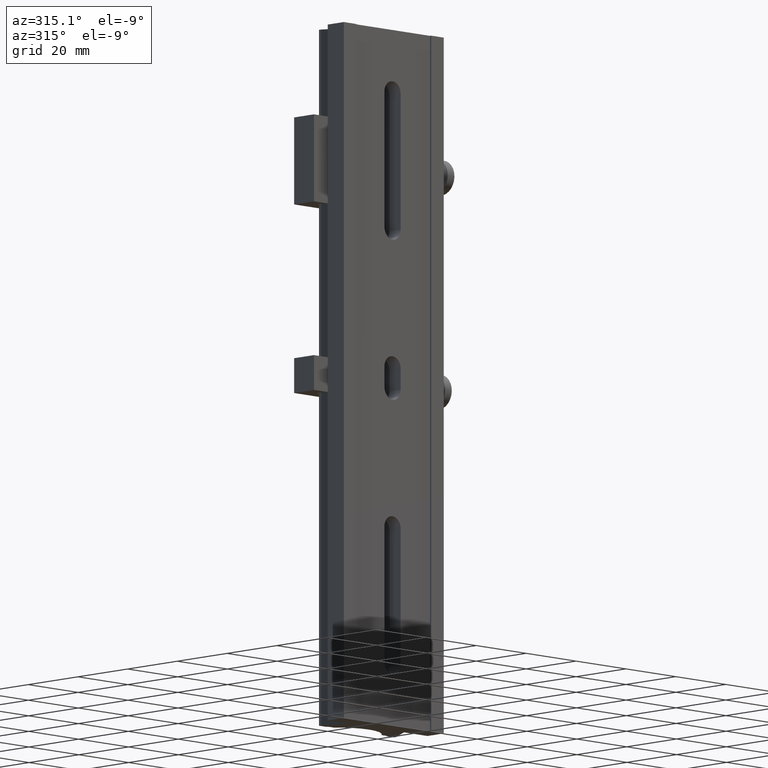
[diagram: clean part render]
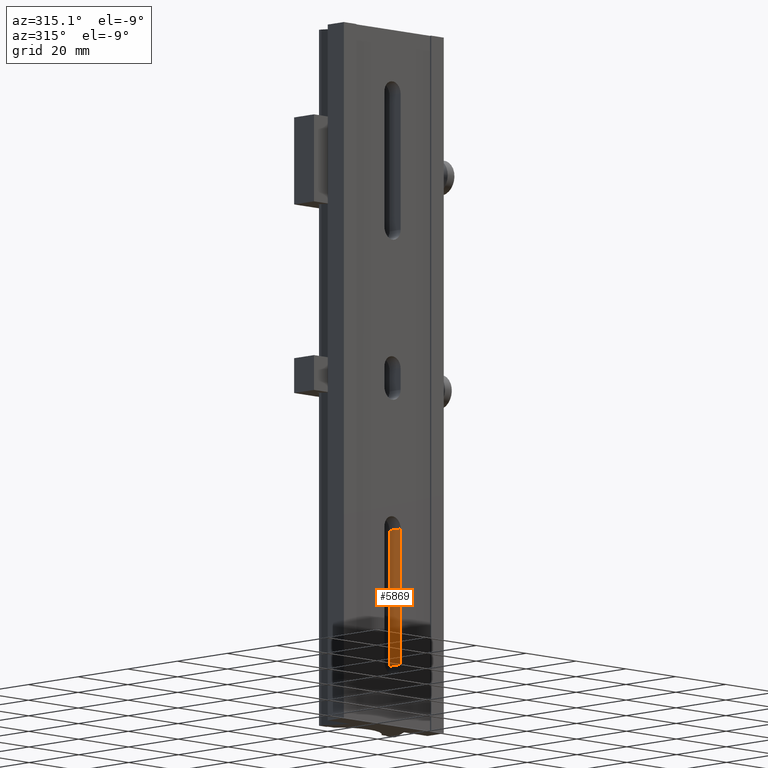
[diagram: same view with one face highlighted and labeled with its STEP entity id]
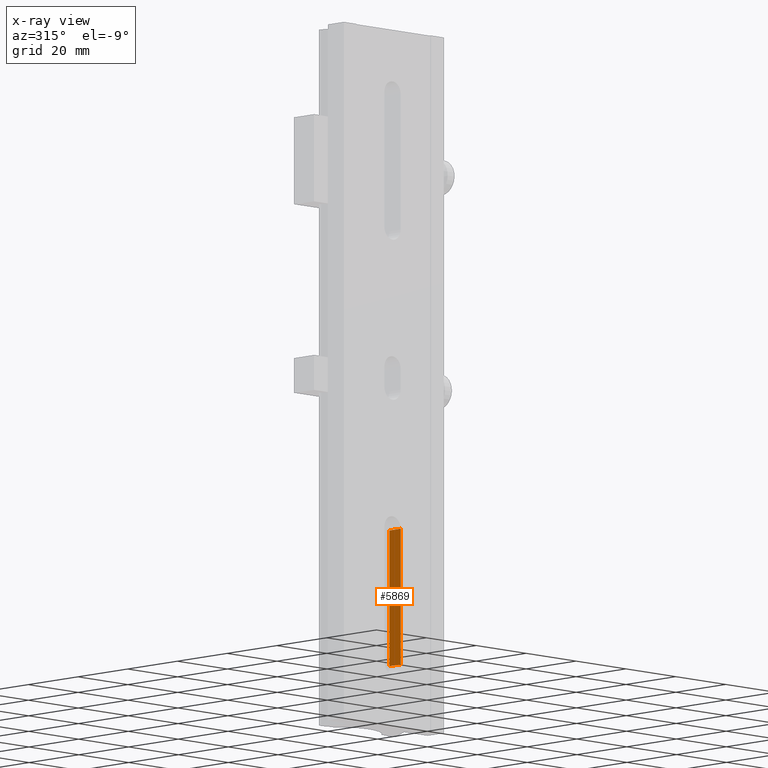
[diagram: x-ray of the same camera — body ghosted, the highlighted face saturated]
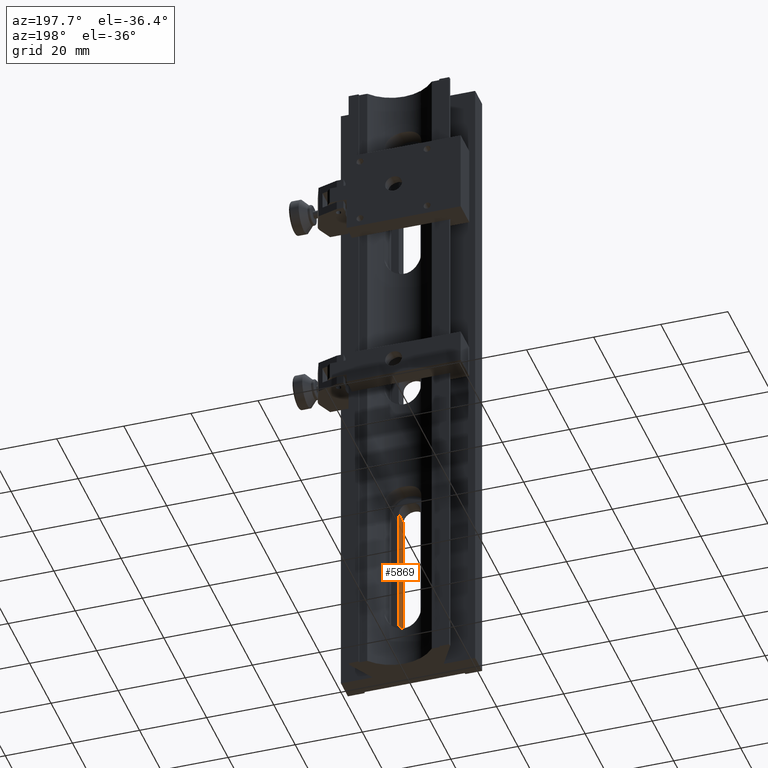
[diagram: same view with one face highlighted and labeled with its STEP entity id]
A machine part, auxiliary view. The second image highlights one B-rep face of the part: STEP entity #5869.
The next image is the same camera in x-ray: the body ghosted, the highlighted face saturated — about 0% of this face is hidden behind the body in this view.
A second angle (auxiliary view) of the same face is appended — the face is thin or edge-on in the first view.
In plain terms, the highlighted planar face has unit normal (-1, 0, 0).
Its self-contained STEP definition (entity closure, byte-faithful):
#145 = PLANE ( 'NONE',  #5255 ) ;
#326 = DIRECTION ( 'NONE',  ( -3.469446951953612217E-16, 0.000000000000000000, 1.000000000000000000 ) ) ;
#381 = EDGE_LOOP ( 'NONE', ( #5065, #2687, #1189, #1548 ) ) ;
#431 = EDGE_CURVE ( 'NONE', #2398, #1325, #1740, .T. ) ;
#710 = CARTESIAN_POINT ( 'NONE',  ( 3.250000000000000444, -43.00000000000000711, 1.499999999999999556 ) ) ;
#775 = DIRECTION ( 'NONE',  ( -3.469446951953612217E-16, 0.000000000000000000, 1.000000000000000000 ) ) ;
#1189 = ORIENTED_EDGE ( 'NONE', *, *, #6402, .T. ) ;
#1325 = VERTEX_POINT ( 'NONE', #1970 ) ;
#1471 = CARTESIAN_POINT ( 'NONE',  ( 3.249999999999991118, -81.99999999999998579, 5.999999999999996447 ) ) ;
#1548 = ORIENTED_EDGE ( 'NONE', *, *, #3475, .F. ) ;
#1740 = LINE ( 'NONE', #4826, #5167 ) ;
#1970 = CARTESIAN_POINT ( 'NONE',  ( 3.249999999999998668, -43.00000000000000711, 5.999999999999996447 ) ) ;
#2157 = CARTESIAN_POINT ( 'NONE',  ( 3.249999999999991118, -81.99999999999998579, 6.500000000000002665 ) ) ;
#2162 = LINE ( 'NONE', #4193, #4017 ) ;
#2163 = CARTESIAN_POINT ( 'NONE',  ( 3.249999999999992895, -81.99999999999998579, 1.499999999999999556 ) ) ;
#2398 = VERTEX_POINT ( 'NONE', #710 ) ;
#2492 = VECTOR ( 'NONE', #6203, 1000.000000000000000 ) ;
#2630 = VERTEX_POINT ( 'NONE', #1471 ) ;
#2687 = ORIENTED_EDGE ( 'NONE', *, *, #2867, .F. ) ;
#2693 = DIRECTION ( 'NONE',  ( -1.836970198721029934E-16, -1.000000000000000000, 0.000000000000000000 ) ) ;
#2867 = EDGE_CURVE ( 'NONE', #5305, #2398, #5253, .T. ) ;
#2874 = LINE ( 'NONE', #5982, #6473 ) ;
#3475 = EDGE_CURVE ( 'NONE', #1325, #2630, #2162, .T. ) ;
#3693 = DIRECTION ( 'NONE',  ( -3.469446951953612217E-16, 0.000000000000000000, 1.000000000000000000 ) ) ;
#3755 = CARTESIAN_POINT ( 'NONE',  ( 3.249999999999992895, -81.99999999999998579, 1.499999999999999556 ) ) ;
#4017 = VECTOR ( 'NONE', #2693, 1000.000000000000000 ) ;
#4186 = DIRECTION ( 'NONE',  ( -1.000000000000000000, 1.836970198721029934E-16, -3.469446951953612217E-16 ) ) ;
#4193 = CARTESIAN_POINT ( 'NONE',  ( 3.250000000000006217, -5.970153145843359180E-16, 5.999999999999996447 ) ) ;
#4218 = FACE_OUTER_BOUND ( 'NONE', #381, .T. ) ;
#4826 = CARTESIAN_POINT ( 'NONE',  ( 3.249999999999998668, -43.00000000000000711, 6.500000000000002665 ) ) ;
#5065 = ORIENTED_EDGE ( 'NONE', *, *, #431, .F. ) ;
#5167 = VECTOR ( 'NONE', #775, 1000.000000000000000 ) ;
#5253 = LINE ( 'NONE', #2163, #2492 ) ;
#5255 = AXIS2_PLACEMENT_3D ( 'NONE', #2157, #4186, #3693 ) ;
#5305 = VERTEX_POINT ( 'NONE', #3755 ) ;
#5869 = ADVANCED_FACE ( 'NONE', ( #4218 ), #145, .T. ) ;
#5982 = CARTESIAN_POINT ( 'NONE',  ( 3.249999999999991562, -81.99999999999998579, 6.500000000000002665 ) ) ;
#6203 = DIRECTION ( 'NONE',  ( 1.836970198721029934E-16, 1.000000000000000000, -0.000000000000000000 ) ) ;
#6402 = EDGE_CURVE ( 'NONE', #5305, #2630, #2874, .T. ) ;
#6473 = VECTOR ( 'NONE', #326, 1000.000000000000000 ) ;